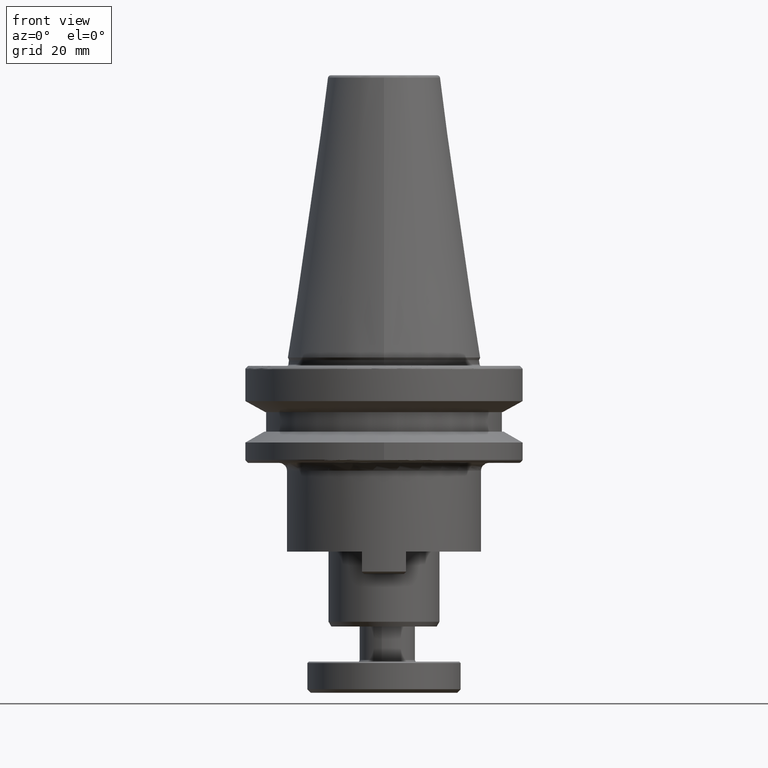
[diagram: clean part render]
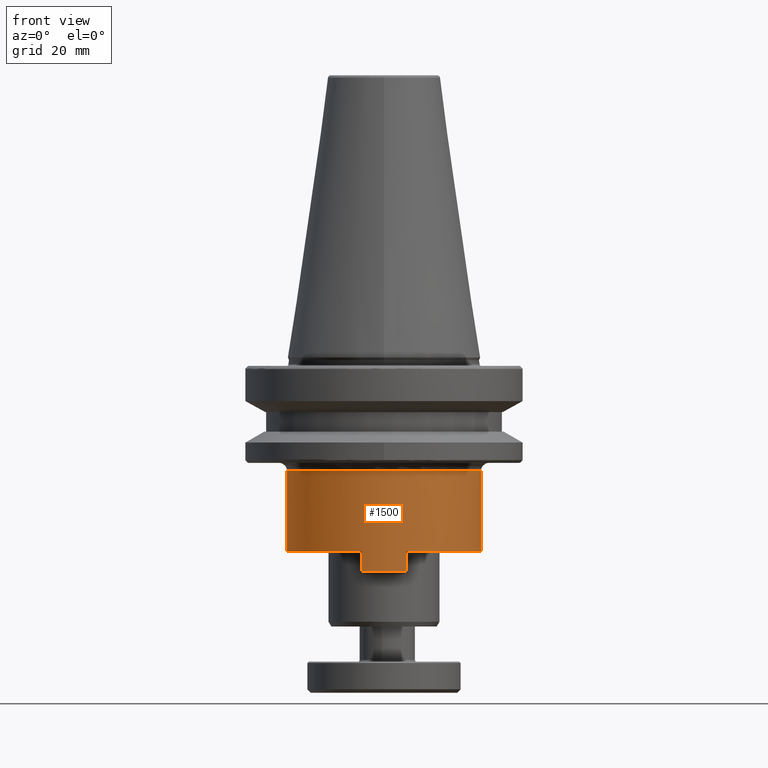
[diagram: same view with one face highlighted and labeled with its STEP entity id]
A machine part, front view. The second image highlights one B-rep face of the part: STEP entity #1500.
In plain terms, the highlighted cylindrical surface (partial cylindrical patch) has radius 35 mm, axis along (0, -0, 1).
Its self-contained STEP definition (entity closure, byte-faithful):
#14 = CARTESIAN_POINT ( 'NONE',  ( 8.000000002804222600, -34.07345007414325300, -77.20000000000000300 ) ) ;
#35 = ORIENTED_EDGE ( 'NONE', *, *, #2597, .T. ) ;
#67 = VERTEX_POINT ( 'NONE', #1445 ) ;
#79 = VECTOR ( 'NONE', #762, 1000.000000000000000 ) ;
#117 = ORIENTED_EDGE ( 'NONE', *, *, #2443, .F. ) ;
#184 = EDGE_CURVE ( 'NONE', #856, #1704, #2032, .T. ) ;
#187 = CARTESIAN_POINT ( 'NONE',  ( 35.00000000000000000, 0.0000000000000000000, -55.00000000000000000 ) ) ;
#324 = DIRECTION ( 'NONE',  ( 0.0000000000000000000, -0.0000000000000000000, 1.000000000000000000 ) ) ;
#327 = CARTESIAN_POINT ( 'NONE',  ( 0.0000000000000000000, 0.0000000000000000000, -55.00000000000000000 ) ) ;
#328 = CIRCLE ( 'NONE', #2309, 35.00000000000000000 ) ;
#496 = AXIS2_PLACEMENT_3D ( 'NONE', #327, #324, #850 ) ;
#585 = DIRECTION ( 'NONE',  ( 0.0000000000000000000, -2.478176394252581700E-017, 1.000000000000000000 ) ) ;
#602 = LINE ( 'NONE', #2872, #79 ) ;
#747 = CARTESIAN_POINT ( 'NONE',  ( 35.00000000000000000, 0.0000000000000000000, -69.99999999660001000 ) ) ;
#762 = DIRECTION ( 'NONE',  ( -0.0000000000000000000, 2.478176394252581700E-017, -1.000000000000000000 ) ) ;
#776 = CARTESIAN_POINT ( 'NONE',  ( 8.000000000000000000, -34.07345007480164200, -69.99999999660001000 ) ) ;
#850 = DIRECTION ( 'NONE',  ( 1.000000000000000000, 0.0000000000000000000, 0.0000000000000000000 ) ) ;
#856 = VERTEX_POINT ( 'NONE', #1955 ) ;
#925 = CARTESIAN_POINT ( 'NONE',  ( 0.0000000000000000000, 0.0000000000000000000, -69.99999999660001000 ) ) ;
#939 = EDGE_LOOP ( 'NONE', ( #2332, #117, #35, #1545, #2888, #2186, #1230, #3344, #3059 ) ) ;
#977 = VERTEX_POINT ( 'NONE', #2135 ) ;
#1002 = VERTEX_POINT ( 'NONE', #2387 ) ;
#1025 = VERTEX_POINT ( 'NONE', #1723 ) ;
#1105 = EDGE_CURVE ( 'NONE', #1002, #2581, #2868, .T. ) ;
#1155 = CARTESIAN_POINT ( 'NONE',  ( -35.00000000000000000, 4.286263797015736500E-015, -55.00000000000000000 ) ) ;
#1170 = CARTESIAN_POINT ( 'NONE',  ( 0.0000000000000000000, 0.0000000000000000000, -69.99999999660001000 ) ) ;
#1182 = AXIS2_PLACEMENT_3D ( 'NONE', #925, #2723, #1190 ) ;
#1190 = DIRECTION ( 'NONE',  ( -1.000000000000000000, 0.0000000000000000000, 0.0000000000000000000 ) ) ;
#1229 = CIRCLE ( 'NONE', #1182, 35.00000000000000000 ) ;
#1230 = ORIENTED_EDGE ( 'NONE', *, *, #2711, .F. ) ;
#1361 = VECTOR ( 'NONE', #1895, 1000.000000000000000 ) ;
#1386 = LINE ( 'NONE', #2115, #1361 ) ;
#1413 = DIRECTION ( 'NONE',  ( -1.000000000000000000, 0.0000000000000000000, 0.0000000000000000000 ) ) ;
#1417 = DIRECTION ( 'NONE',  ( -0.0000000000000000000, -0.0000000000000000000, -1.000000000000000000 ) ) ;
#1419 = CARTESIAN_POINT ( 'NONE',  ( 0.0000000000000000000, 0.0000000000000000000, -40.79999999183063200 ) ) ;
#1445 = CARTESIAN_POINT ( 'NONE',  ( -8.000000000839710500, -34.07345007460449400, -77.20000000000000300 ) ) ;
#1500 = ADVANCED_FACE ( 'NONE', ( #3179 ), #3100, .T. ) ;
#1545 = ORIENTED_EDGE ( 'NONE', *, *, #2335, .T. ) ;
#1588 = AXIS2_PLACEMENT_3D ( 'NONE', #2844, #3359, #3015 ) ;
#1704 = VERTEX_POINT ( 'NONE', #14 ) ;
#1723 = CARTESIAN_POINT ( 'NONE',  ( -8.000000000883588300, -34.07345007459419200, -69.99999999660001000 ) ) ;
#1785 = CARTESIAN_POINT ( 'NONE',  ( -35.00000000000000000, 0.0000000000000000000, -40.79999999183063200 ) ) ;
#1867 = VECTOR ( 'NONE', #2182, 1000.000000000000000 ) ;
#1895 = DIRECTION ( 'NONE',  ( 0.0000000000000000000, -2.478176394252581700E-017, 1.000000000000000000 ) ) ;
#1955 = CARTESIAN_POINT ( 'NONE',  ( 0.0000000000000000000, -35.00000000000001400, -77.19999999999998900 ) ) ;
#2017 = EDGE_CURVE ( 'NONE', #1704, #2576, #1386, .T. ) ;
#2031 = AXIS2_PLACEMENT_3D ( 'NONE', #1170, #2701, #2447 ) ;
#2032 = CIRCLE ( 'NONE', #1588, 35.00000000000000000 ) ;
#2115 = CARTESIAN_POINT ( 'NONE',  ( 8.000000005608447000, -34.07345007348485700, -77.20000000000000300 ) ) ;
#2123 = EDGE_CURVE ( 'NONE', #977, #2581, #2347, .T. ) ;
#2135 = CARTESIAN_POINT ( 'NONE',  ( -35.00000000000000000, 4.286263797015736500E-015, -69.99999999660001000 ) ) ;
#2153 = CARTESIAN_POINT ( 'NONE',  ( 0.0000000000000000000, -2.149475384360754900E-032, -77.19999999999998900 ) ) ;
#2171 = EDGE_CURVE ( 'NONE', #3307, #1002, #2704, .T. ) ;
#2182 = DIRECTION ( 'NONE',  ( 0.0000000000000000000, -0.0000000000000000000, 1.000000000000000000 ) ) ;
#2186 = ORIENTED_EDGE ( 'NONE', *, *, #2017, .T. ) ;
#2309 = AXIS2_PLACEMENT_3D ( 'NONE', #2153, #585, #2417 ) ;
#2332 = ORIENTED_EDGE ( 'NONE', *, *, #2123, .F. ) ;
#2335 = EDGE_CURVE ( 'NONE', #67, #856, #328, .T. ) ;
#2347 = LINE ( 'NONE', #1155, #3064 ) ;
#2387 = CARTESIAN_POINT ( 'NONE',  ( 35.00000000000000000, 4.457714348400629900E-015, -40.79999999183063200 ) ) ;
#2417 = DIRECTION ( 'NONE',  ( 0.0000000000000000000, -1.000000000000000000, 0.0000000000000000000 ) ) ;
#2443 = EDGE_CURVE ( 'NONE', #1025, #977, #3388, .T. ) ;
#2447 = DIRECTION ( 'NONE',  ( -1.000000000000000000, 0.0000000000000000000, 0.0000000000000000000 ) ) ;
#2480 = DIRECTION ( 'NONE',  ( 0.0000000000000000000, -0.0000000000000000000, 1.000000000000000000 ) ) ;
#2576 = VERTEX_POINT ( 'NONE', #776 ) ;
#2581 = VERTEX_POINT ( 'NONE', #1785 ) ;
#2597 = EDGE_CURVE ( 'NONE', #1025, #67, #602, .T. ) ;
#2701 = DIRECTION ( 'NONE',  ( -0.0000000000000000000, -0.0000000000000000000, -1.000000000000000000 ) ) ;
#2704 = LINE ( 'NONE', #187, #1867 ) ;
#2711 = EDGE_CURVE ( 'NONE', #3307, #2576, #1229, .T. ) ;
#2723 = DIRECTION ( 'NONE',  ( -0.0000000000000000000, -0.0000000000000000000, -1.000000000000000000 ) ) ;
#2844 = CARTESIAN_POINT ( 'NONE',  ( 0.0000000000000000000, -2.149475384360754900E-032, -77.19999999999998900 ) ) ;
#2868 = CIRCLE ( 'NONE', #3071, 35.00000000000000000 ) ;
#2872 = CARTESIAN_POINT ( 'NONE',  ( -8.000000000883588300, -34.07345007459419200, -77.20000000000000300 ) ) ;
#2888 = ORIENTED_EDGE ( 'NONE', *, *, #184, .T. ) ;
#3015 = DIRECTION ( 'NONE',  ( 0.0000000000000000000, -1.000000000000000000, 0.0000000000000000000 ) ) ;
#3059 = ORIENTED_EDGE ( 'NONE', *, *, #1105, .T. ) ;
#3064 = VECTOR ( 'NONE', #2480, 1000.000000000000000 ) ;
#3071 = AXIS2_PLACEMENT_3D ( 'NONE', #1419, #1417, #1413 ) ;
#3100 = CYLINDRICAL_SURFACE ( 'NONE', #496, 35.00000000000000000 ) ;
#3179 = FACE_OUTER_BOUND ( 'NONE', #939, .T. ) ;
#3307 = VERTEX_POINT ( 'NONE', #747 ) ;
#3344 = ORIENTED_EDGE ( 'NONE', *, *, #2171, .T. ) ;
#3359 = DIRECTION ( 'NONE',  ( 0.0000000000000000000, -2.478176394252581700E-017, 1.000000000000000000 ) ) ;
#3388 = CIRCLE ( 'NONE', #2031, 35.00000000000000000 ) ;